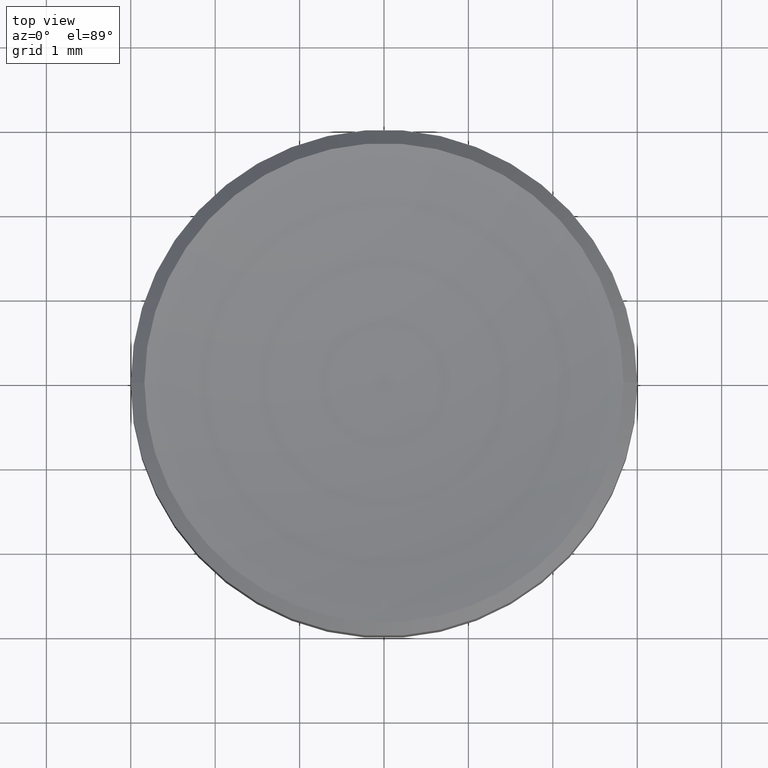
[diagram: clean part render]
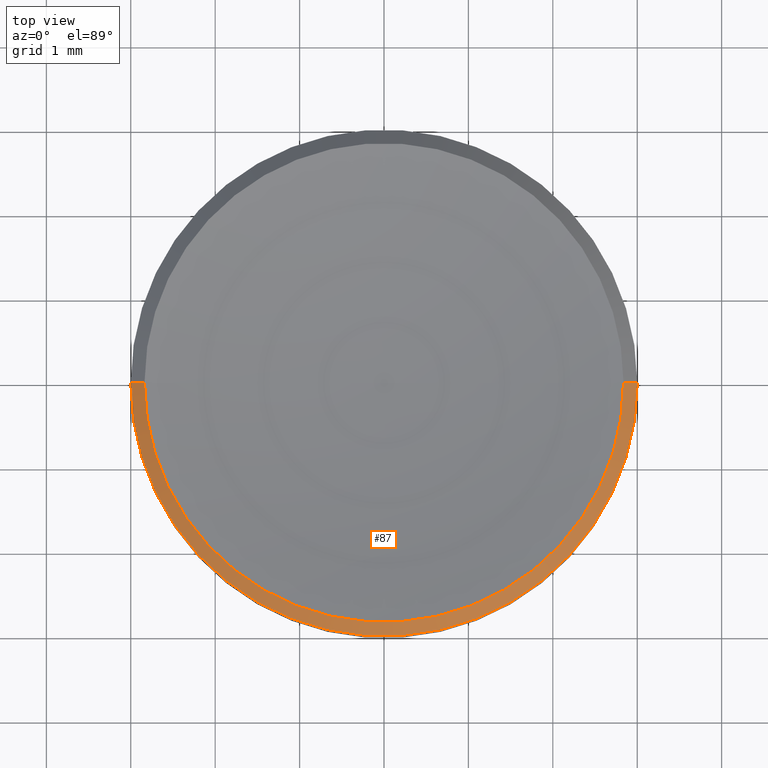
[diagram: same view with one face highlighted and labeled with its STEP entity id]
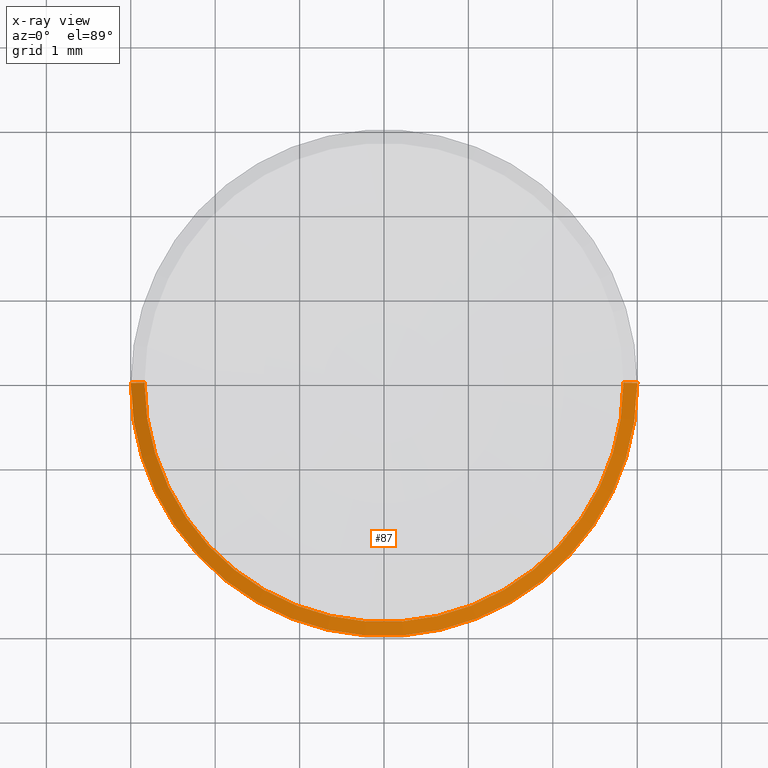
[diagram: x-ray of the same camera — body ghosted, the highlighted face saturated]
A machine part, top view. The second image highlights one B-rep face of the part: STEP entity #87.
The next image is the same camera in x-ray: the body ghosted, the highlighted face saturated — about 0% of this face is hidden behind the body in this view.
In plain terms, the highlighted conical surface has half-angle 45 deg.
Its self-contained STEP definition (entity closure, byte-faithful):
#6 = CARTESIAN_POINT ( 'NONE',  ( 2.837518045210084772, 0.000000000000000000, 1.812481954789914917 ) ) ;
#15 = CIRCLE ( 'NONE', #176, 2.837518045210084772 ) ;
#18 = AXIS2_PLACEMENT_3D ( 'NONE', #185, #241, #51 ) ;
#20 = VERTEX_POINT ( 'NONE', #147 ) ;
#23 = CARTESIAN_POINT ( 'NONE',  ( 3.000000000000000000, 0.000000000000000000, 1.650000000000000355 ) ) ;
#29 = CARTESIAN_POINT ( 'NONE',  ( -2.837518045210084772, 0.000000000000000000, 1.812481954789914917 ) ) ;
#51 = DIRECTION ( 'NONE',  ( -1.000000000000000000, 0.000000000000000000, 0.000000000000000000 ) ) ;
#63 = EDGE_CURVE ( 'NONE', #107, #210, #129, .T. ) ;
#70 = DIRECTION ( 'NONE',  ( 0.000000000000000000, 0.000000000000000000, -1.000000000000000000 ) ) ;
#78 = VECTOR ( 'NONE', #196, 1000.000000000000114 ) ;
#87 = ADVANCED_FACE ( 'NONE', ( #205 ), #224, .T. ) ;
#92 = ORIENTED_EDGE ( 'NONE', *, *, #146, .F. ) ;
#97 = EDGE_LOOP ( 'NONE', ( #92, #118, #173, #230 ) ) ;
#107 = VERTEX_POINT ( 'NONE', #23 ) ;
#112 = EDGE_CURVE ( 'NONE', #20, #210, #217, .T. ) ;
#118 = ORIENTED_EDGE ( 'NONE', *, *, #154, .F. ) ;
#128 = CARTESIAN_POINT ( 'NONE',  ( 2.837518045210084772, 3.474957391589384965E-16, 1.812481954789914917 ) ) ;
#129 = CIRCLE ( 'NONE', #182, 3.000000000000000000 ) ;
#132 = DIRECTION ( 'NONE',  ( 0.7071067811865493491, 8.659560562354957510E-17, -0.7071067811865456854 ) ) ;
#136 = CARTESIAN_POINT ( 'NONE',  ( -3.000000000000000000, 3.673940397442059868E-16, 1.650000000000000355 ) ) ;
#140 = VECTOR ( 'NONE', #132, 1000.000000000000114 ) ;
#146 = EDGE_CURVE ( 'NONE', #164, #107, #237, .T. ) ;
#147 = CARTESIAN_POINT ( 'NONE',  ( -2.837518045210084772, 3.474957391589384965E-16, 1.812481954789914917 ) ) ;
#154 = EDGE_CURVE ( 'NONE', #20, #164, #15, .T. ) ;
#159 = DIRECTION ( 'NONE',  ( -1.000000000000000000, 0.000000000000000000, 0.000000000000000000 ) ) ;
#164 = VERTEX_POINT ( 'NONE', #6 ) ;
#173 = ORIENTED_EDGE ( 'NONE', *, *, #112, .T. ) ;
#176 = AXIS2_PLACEMENT_3D ( 'NONE', #254, #194, #199 ) ;
#182 = AXIS2_PLACEMENT_3D ( 'NONE', #218, #70, #159 ) ;
#185 = CARTESIAN_POINT ( 'NONE',  ( 0.000000000000000000, 0.000000000000000000, 1.812481954789914917 ) ) ;
#194 = DIRECTION ( 'NONE',  ( -0.000000000000000000, -0.000000000000000000, 1.000000000000000000 ) ) ;
#196 = DIRECTION ( 'NONE',  ( -0.7071067811865493491, 0.000000000000000000, -0.7071067811865456854 ) ) ;
#199 = DIRECTION ( 'NONE',  ( 1.000000000000000000, 0.000000000000000000, 0.000000000000000000 ) ) ;
#205 = FACE_OUTER_BOUND ( 'NONE', #97, .T. ) ;
#210 = VERTEX_POINT ( 'NONE', #136 ) ;
#217 = LINE ( 'NONE', #29, #78 ) ;
#218 = CARTESIAN_POINT ( 'NONE',  ( 0.000000000000000000, 0.000000000000000000, 1.650000000000000355 ) ) ;
#224 = CONICAL_SURFACE ( 'NONE', #18, 2.837518045210084772, 0.7853981633974509435 ) ;
#230 = ORIENTED_EDGE ( 'NONE', *, *, #63, .F. ) ;
#237 = LINE ( 'NONE', #128, #140 ) ;
#241 = DIRECTION ( 'NONE',  ( 0.000000000000000000, 0.000000000000000000, -1.000000000000000000 ) ) ;
#254 = CARTESIAN_POINT ( 'NONE',  ( 0.000000000000000000, 0.000000000000000000, 1.812481954789914917 ) ) ;